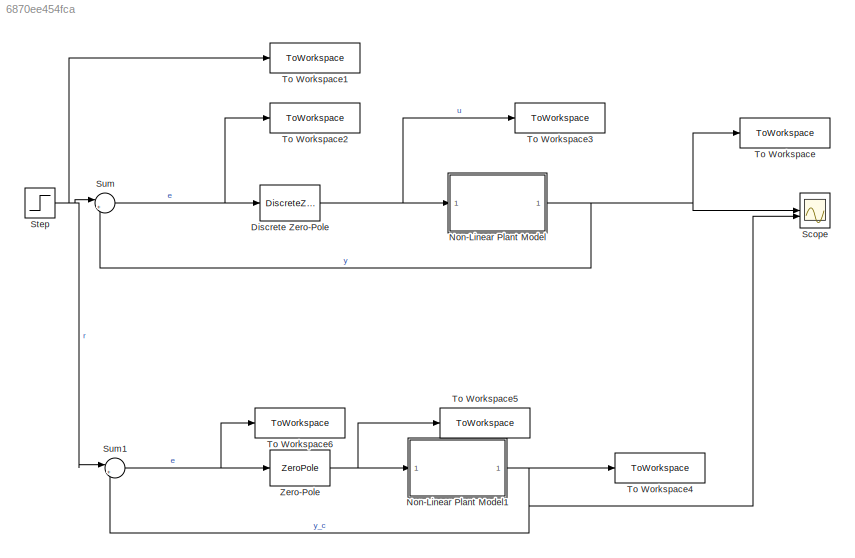
MODEL slx_6870ee454fca
KIND model
CONFIG AbsTol = auto
CONFIG EnableMultiTasking = off
CONFIG FixedStep = auto
CONFIG MaxStep = 1e-3
CONFIG MinStep = auto
CONFIG RelTol = 1e-3
CONFIG SampleTimeConstraint = Unconstrained
CONFIG SolverName = VariableStepAuto
CONFIG StartTime = 0.0
CONFIG StopTime = 20
WORKSPACE source: mxarray member
WORKSPACE g = 9.80665
WORKSPACE l = 3.7
BLOCK [DiscreteZeroPole] Discrete Zero-Pole
  Gain = C_d.K
  Poles = C_d.P{1}
  SampleTime = Ts
  Zeros = C_d.Z{1}
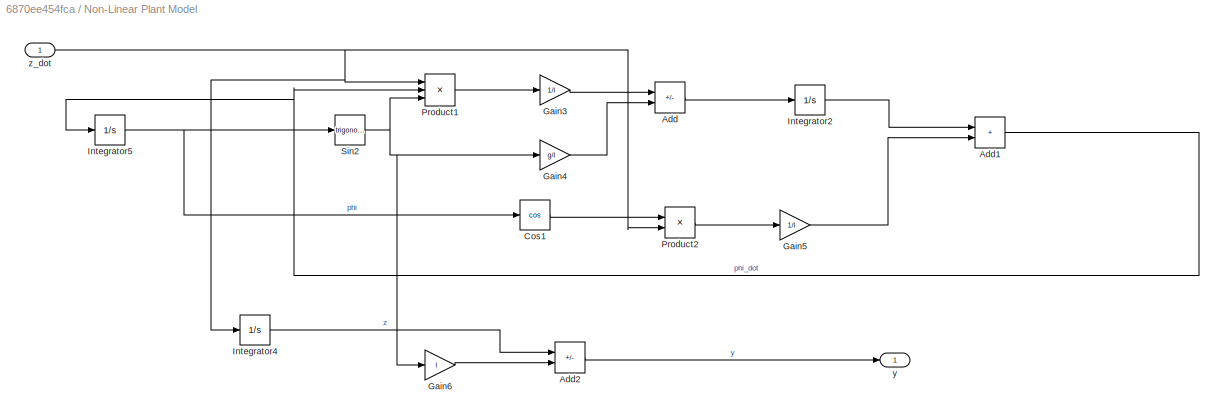
BLOCK [SubSystem] Non-Linear Plant Model
BLOCK [Sum] Non-Linear Plant Model/Add
  IconShape = rectangular
  Inputs = +-
BLOCK [Sum] Non-Linear Plant Model/Add1
  IconShape = rectangular
BLOCK [Sum] Non-Linear Plant Model/Add2
  IconShape = rectangular
  Inputs = +-
BLOCK [Trigonometry] Non-Linear Plant Model/Cos1
  Operator = cos
BLOCK [Gain] Non-Linear Plant Model/Gain3
  Gain = 1/l
BLOCK [Gain] Non-Linear Plant Model/Gain4
  Gain = g/l
BLOCK [Gain] Non-Linear Plant Model/Gain5
  Gain = 1/l
BLOCK [Gain] Non-Linear Plant Model/Gain6
  Gain = l
BLOCK [Integrator] Non-Linear Plant Model/Integrator2
BLOCK [Integrator] Non-Linear Plant Model/Integrator4
BLOCK [Integrator] Non-Linear Plant Model/Integrator5
BLOCK [Product] Non-Linear Plant Model/Product1
  Inputs = 3
BLOCK [Product] Non-Linear Plant Model/Product2
BLOCK [Trigonometry] Non-Linear Plant Model/Sin2
BLOCK [Outport] Non-Linear Plant Model/y
BLOCK [Inport] Non-Linear Plant Model/z_dot
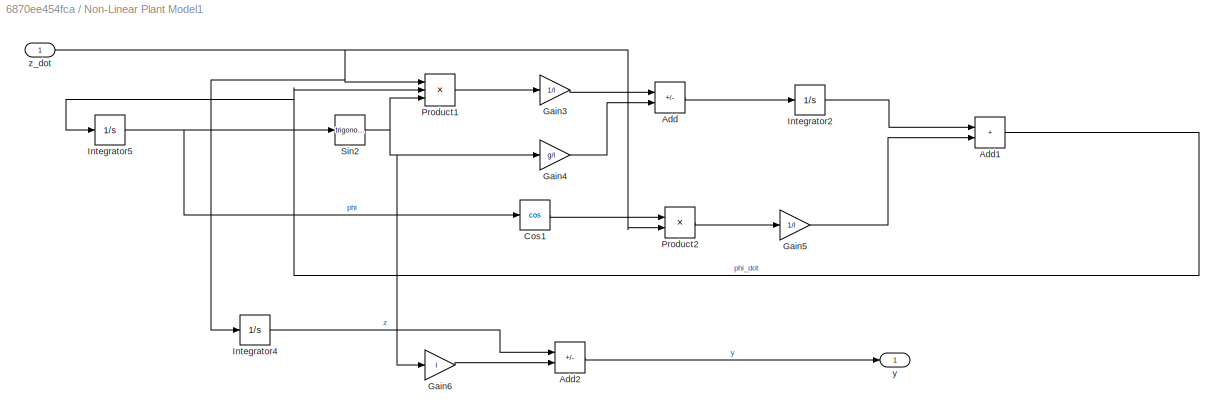
BLOCK [SubSystem] Non-Linear Plant Model1
BLOCK [Sum] Non-Linear Plant Model1/Add
  IconShape = rectangular
  Inputs = +-
BLOCK [Sum] Non-Linear Plant Model1/Add1
  IconShape = rectangular
BLOCK [Sum] Non-Linear Plant Model1/Add2
  IconShape = rectangular
  Inputs = +-
BLOCK [Trigonometry] Non-Linear Plant Model1/Cos1
  Operator = cos
BLOCK [Gain] Non-Linear Plant Model1/Gain3
  Gain = 1/l
BLOCK [Gain] Non-Linear Plant Model1/Gain4
  Gain = g/l
BLOCK [Gain] Non-Linear Plant Model1/Gain5
  Gain = 1/l
BLOCK [Gain] Non-Linear Plant Model1/Gain6
  Gain = l
BLOCK [Integrator] Non-Linear Plant Model1/Integrator2
BLOCK [Integrator] Non-Linear Plant Model1/Integrator4
BLOCK [Integrator] Non-Linear Plant Model1/Integrator5
BLOCK [Product] Non-Linear Plant Model1/Product1
  Inputs = 3
BLOCK [Product] Non-Linear Plant Model1/Product2
BLOCK [Trigonometry] Non-Linear Plant Model1/Sin2
BLOCK [Outport] Non-Linear Plant Model1/y
BLOCK [Inport] Non-Linear Plant Model1/z_dot
BLOCK [Scope] Scope
  Floating = off
  NumInputPorts = 2
  ScopeSpecificationString = Simulink.scopes.TimeScopeBlockCfg('CurrentConfiguration', extmgr.ConfigurationSet(extmgr.Configuration('Core','General UI',true),extmgr.Configuration('Core','Source UI',true),extmgr.Configuration('Sources','WiredSimulink',true),extmgr.Configuration('Visuals','Time Domain',true,'SerializedDisplays',{struct('MinYLimReal','-0.12532','MaxYLimReal','1.1279','YLabelReal','','MinYLimMag','0.00000','MaxYL...<+1439ch>
BLOCK [Step] Step
  SampleTime = 0
  Time = 0
BLOCK [Sum] Sum
  Inputs = |+-
BLOCK [Sum] Sum1
  Inputs = |+-
BLOCK [ToWorkspace] To Workspace
  FixptAsFi = on
  MaxDataPoints = inf
  SampleTime = -1
  SaveFormat = Timeseries
  VariableName = y
BLOCK [ToWorkspace] To Workspace1
  FixptAsFi = on
  MaxDataPoints = inf
  SampleTime = -1
  SaveFormat = Timeseries
  VariableName = r
BLOCK [ToWorkspace] To Workspace2
  FixptAsFi = on
  MaxDataPoints = inf
  SampleTime = -1
  SaveFormat = Timeseries
  VariableName = e
BLOCK [ToWorkspace] To Workspace3
  FixptAsFi = on
  MaxDataPoints = inf
  SampleTime = -1
  SaveFormat = Timeseries
  VariableName = u
BLOCK [ToWorkspace] To Workspace4
  FixptAsFi = on
  MaxDataPoints = inf
  SampleTime = -1
  SaveFormat = Timeseries
  VariableName = y_c
BLOCK [ToWorkspace] To Workspace5
  FixptAsFi = on
  MaxDataPoints = inf
  SampleTime = -1
  SaveFormat = Timeseries
  VariableName = u_c
BLOCK [ToWorkspace] To Workspace6
  FixptAsFi = on
  MaxDataPoints = inf
  SampleTime = -1
  SaveFormat = Timeseries
  VariableName = e_c
BLOCK [ZeroPole] Zero-Pole
  Gain = C.K
  Poles = C.P{1}
  Zeros = C.Z{1}
NET Discrete Zero-Pole:1 -> Non-Linear Plant Model:1, To Workspace3:1
NET Non-Linear Plant Model/Add1:1 -> Non-Linear Plant Model/Integrator5:1, Non-Linear Plant Model/Product1:2
LINE Non-Linear Plant Model/Add2:1 -> Non-Linear Plant Model/y:1
LINE Non-Linear Plant Model/Add:1 -> Non-Linear Plant Model/Integrator2:1
LINE Non-Linear Plant Model/Cos1:1 -> Non-Linear Plant Model/Product2:1
LINE Non-Linear Plant Model/Gain3:1 -> Non-Linear Plant Model/Add:1
LINE Non-Linear Plant Model/Gain4:1 -> Non-Linear Plant Model/Add:2
LINE Non-Linear Plant Model/Gain5:1 -> Non-Linear Plant Model/Add1:2
LINE Non-Linear Plant Model/Gain6:1 -> Non-Linear Plant Model/Add2:2
LINE Non-Linear Plant Model/Integrator2:1 -> Non-Linear Plant Model/Add1:1
LINE Non-Linear Plant Model/Integrator4:1 -> Non-Linear Plant Model/Add2:1
NET Non-Linear Plant Model/Integrator5:1 -> Non-Linear Plant Model/Cos1:1, Non-Linear Plant Model/Sin2:1
LINE Non-Linear Plant Model/Product1:1 -> Non-Linear Plant Model/Gain3:1
LINE Non-Linear Plant Model/Product2:1 -> Non-Linear Plant Model/Gain5:1
NET Non-Linear Plant Model/Sin2:1 -> Non-Linear Plant Model/Gain4:1, Non-Linear Plant Model/Gain6:1, Non-Linear Plant Model/Product1:3
NET Non-Linear Plant Model/z_dot:1 -> Non-Linear Plant Model/Integrator4:1, Non-Linear Plant Model/Product1:1, Non-Linear Plant Model/Product2:2
NET Non-Linear Plant Model1/Add1:1 -> Non-Linear Plant Model1/Integrator5:1, Non-Linear Plant Model1/Product1:2
LINE Non-Linear Plant Model1/Add2:1 -> Non-Linear Plant Model1/y:1
LINE Non-Linear Plant Model1/Add:1 -> Non-Linear Plant Model1/Integrator2:1
LINE Non-Linear Plant Model1/Cos1:1 -> Non-Linear Plant Model1/Product2:1
LINE Non-Linear Plant Model1/Gain3:1 -> Non-Linear Plant Model1/Add:1
LINE Non-Linear Plant Model1/Gain4:1 -> Non-Linear Plant Model1/Add:2
LINE Non-Linear Plant Model1/Gain5:1 -> Non-Linear Plant Model1/Add1:2
LINE Non-Linear Plant Model1/Gain6:1 -> Non-Linear Plant Model1/Add2:2
LINE Non-Linear Plant Model1/Integrator2:1 -> Non-Linear Plant Model1/Add1:1
LINE Non-Linear Plant Model1/Integrator4:1 -> Non-Linear Plant Model1/Add2:1
NET Non-Linear Plant Model1/Integrator5:1 -> Non-Linear Plant Model1/Cos1:1, Non-Linear Plant Model1/Sin2:1
LINE Non-Linear Plant Model1/Product1:1 -> Non-Linear Plant Model1/Gain3:1
LINE Non-Linear Plant Model1/Product2:1 -> Non-Linear Plant Model1/Gain5:1
NET Non-Linear Plant Model1/Sin2:1 -> Non-Linear Plant Model1/Gain4:1, Non-Linear Plant Model1/Gain6:1, Non-Linear Plant Model1/Product1:3
NET Non-Linear Plant Model1/z_dot:1 -> Non-Linear Plant Model1/Integrator4:1, Non-Linear Plant Model1/Product1:1, Non-Linear Plant Model1/Product2:2
NET Non-Linear Plant Model1:1 -> Scope:2, Sum1:2, To Workspace4:1
NET Non-Linear Plant Model:1 -> Scope:1, Sum:2, To Workspace:1
NET Step:1 -> Sum1:1, Sum:1, To Workspace1:1
NET Sum1:1 -> To Workspace6:1, Zero-Pole:1
NET Sum:1 -> Discrete Zero-Pole:1, To Workspace2:1
NET Zero-Pole:1 -> Non-Linear Plant Model1:1, To Workspace5:1
note: NET lines group one-source signal fan-out (src -> all destinations, sorted); 1:1 wires keep LINE
